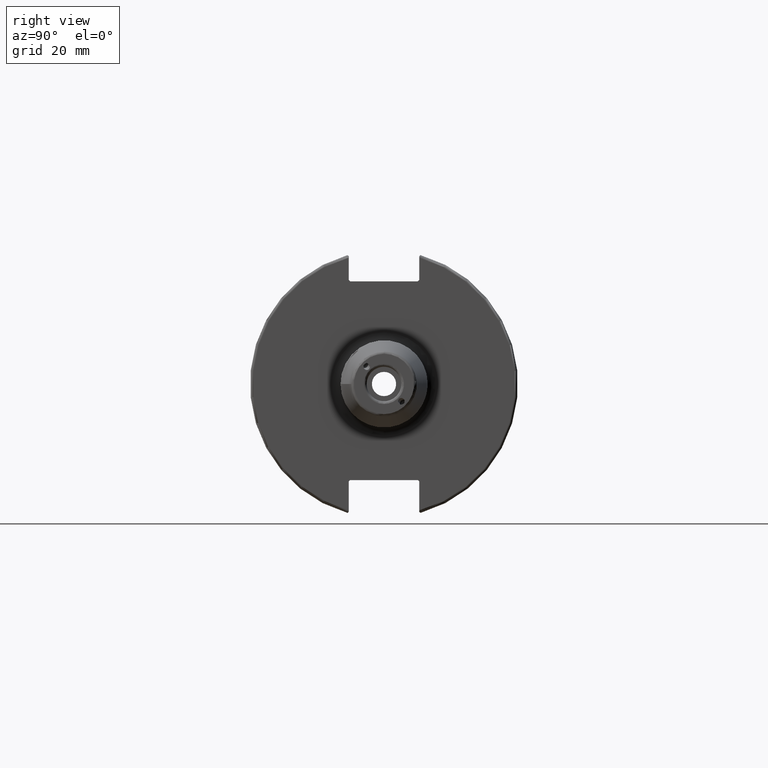
[diagram: clean part render]
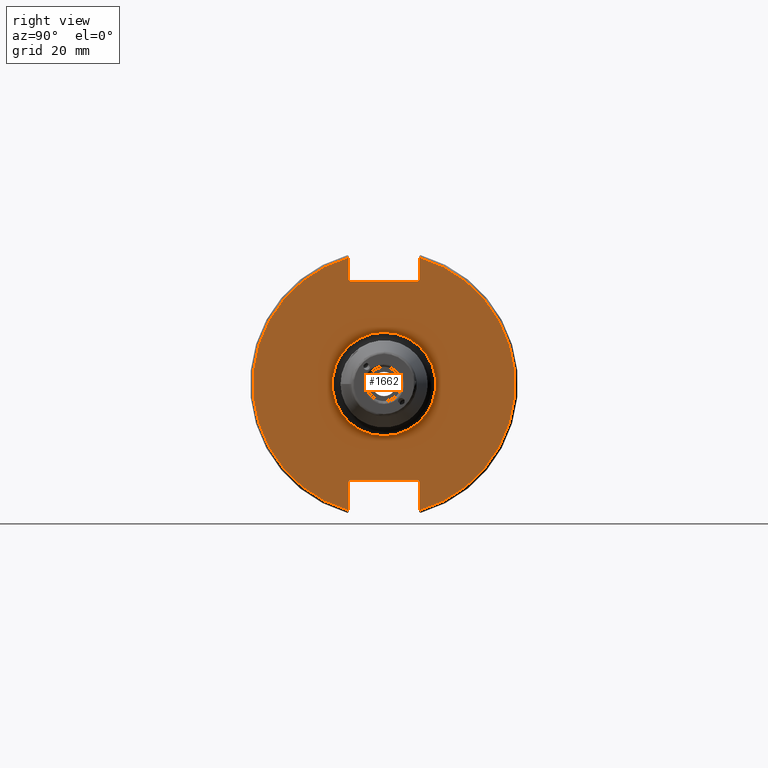
[diagram: same view with one face highlighted and labeled with its STEP entity id]
A machine part, right view. The second image highlights one B-rep face of the part: STEP entity #1662.
In plain terms, the highlighted planar face has unit normal (1, 0, 0).
Its self-contained STEP definition (entity closure, byte-faithful):
#35=FACE_BOUND('',#313,.T.);
#57=PLANE('',#1799);
#117=CIRCLE('',#1796,19.);
#119=CIRCLE('',#1800,48.2125);
#120=CIRCLE('',#1801,48.2125);
#213=FACE_OUTER_BOUND('',#312,.T.);
#312=EDGE_LOOP('',(#1187,#1188,#1189,#1190,#1191,#1192,#1193,#1194,#1195,
#1196,#1197,#1198));
#313=EDGE_LOOP('',(#1199));
#478=LINE('',#2714,#580);
#479=LINE('',#2716,#581);
#480=LINE('',#2718,#582);
#481=LINE('',#2720,#583);
#482=LINE('',#2722,#584);
#483=LINE('',#2726,#585);
#484=LINE('',#2728,#586);
#485=LINE('',#2730,#587);
#486=LINE('',#2732,#588);
#487=LINE('',#2733,#589);
#580=VECTOR('',#2029,10.);
#581=VECTOR('',#2030,10.);
#582=VECTOR('',#2031,10.);
#583=VECTOR('',#2032,10.);
#584=VECTOR('',#2033,10.);
#585=VECTOR('',#2036,10.);
#586=VECTOR('',#2037,10.);
#587=VECTOR('',#2038,10.);
#588=VECTOR('',#2039,10.);
#589=VECTOR('',#2040,10.);
#705=VERTEX_POINT('',#2703);
#706=VERTEX_POINT('',#2710);
#707=VERTEX_POINT('',#2711);
#708=VERTEX_POINT('',#2713);
#709=VERTEX_POINT('',#2715);
#710=VERTEX_POINT('',#2717);
#711=VERTEX_POINT('',#2719);
#712=VERTEX_POINT('',#2721);
#713=VERTEX_POINT('',#2723);
#714=VERTEX_POINT('',#2725);
#715=VERTEX_POINT('',#2727);
#716=VERTEX_POINT('',#2729);
#717=VERTEX_POINT('',#2731);
#889=EDGE_CURVE('',#705,#705,#117,.T.);
#892=EDGE_CURVE('',#706,#707,#119,.T.);
#893=EDGE_CURVE('',#706,#708,#478,.T.);
#894=EDGE_CURVE('',#709,#708,#479,.T.);
#895=EDGE_CURVE('',#709,#710,#480,.T.);
#896=EDGE_CURVE('',#711,#710,#481,.T.);
#897=EDGE_CURVE('',#711,#712,#482,.T.);
#898=EDGE_CURVE('',#713,#712,#120,.T.);
#899=EDGE_CURVE('',#713,#714,#483,.T.);
#900=EDGE_CURVE('',#715,#714,#484,.T.);
#901=EDGE_CURVE('',#715,#716,#485,.T.);
#902=EDGE_CURVE('',#717,#716,#486,.T.);
#903=EDGE_CURVE('',#717,#707,#487,.T.);
#1187=ORIENTED_EDGE('',*,*,#892,.F.);
#1188=ORIENTED_EDGE('',*,*,#893,.T.);
#1189=ORIENTED_EDGE('',*,*,#894,.F.);
#1190=ORIENTED_EDGE('',*,*,#895,.T.);
#1191=ORIENTED_EDGE('',*,*,#896,.F.);
#1192=ORIENTED_EDGE('',*,*,#897,.T.);
#1193=ORIENTED_EDGE('',*,*,#898,.F.);
#1194=ORIENTED_EDGE('',*,*,#899,.T.);
#1195=ORIENTED_EDGE('',*,*,#900,.F.);
#1196=ORIENTED_EDGE('',*,*,#901,.T.);
#1197=ORIENTED_EDGE('',*,*,#902,.F.);
#1198=ORIENTED_EDGE('',*,*,#903,.T.);
#1199=ORIENTED_EDGE('',*,*,#889,.F.);
#1662=ADVANCED_FACE('',(#213,#35),#57,.T.);
#1796=AXIS2_PLACEMENT_3D('',#2705,#2018,#2019);
#1799=AXIS2_PLACEMENT_3D('',#2709,#2025,#2026);
#1800=AXIS2_PLACEMENT_3D('',#2712,#2027,#2028);
#1801=AXIS2_PLACEMENT_3D('',#2724,#2034,#2035);
#2018=DIRECTION('center_axis',(1.,0.,0.));
#2019=DIRECTION('ref_axis',(0.,-1.,-1.22464679914735E-16));
#2025=DIRECTION('center_axis',(1.,0.,0.));
#2026=DIRECTION('ref_axis',(0.,0.,-1.));
#2027=DIRECTION('center_axis',(-1.,0.,0.));
#2028=DIRECTION('ref_axis',(0.,1.,-6.12323399573677E-17));
#2029=DIRECTION('',(0.,0.,-1.));
#2030=DIRECTION('',(0.,0.707106781186549,0.707106781186546));
#2031=DIRECTION('',(0.,-1.,0.));
#2032=DIRECTION('',(0.,0.707106781186549,-0.707106781186546));
#2033=DIRECTION('',(0.,0.,1.));
#2034=DIRECTION('center_axis',(-1.,0.,0.));
#2035=DIRECTION('ref_axis',(0.,-1.,1.60812264967664E-16));
#2036=DIRECTION('',(0.,0.,1.));
#2037=DIRECTION('',(0.,-0.707106781186549,-0.707106781186546));
#2038=DIRECTION('',(0.,1.,0.));
#2039=DIRECTION('',(0.,-0.707106781186549,0.707106781186546));
#2040=DIRECTION('',(0.,0.,-1.));
#2703=CARTESIAN_POINT('',(19.05,-2.32682891837997E-15,-19.));
#2705=CARTESIAN_POINT('Origin',(19.05,0.,0.));
#2709=CARTESIAN_POINT('Origin',(19.05,0.,0.));
#2710=CARTESIAN_POINT('',(19.05,12.95,46.4407434937254));
#2711=CARTESIAN_POINT('',(19.05,12.95,-46.4407434937254));
#2712=CARTESIAN_POINT('Origin',(19.05,0.,0.));
#2713=CARTESIAN_POINT('',(19.05,12.95,38.219));
#2714=CARTESIAN_POINT('',(19.05,12.95,18.8595));
#2715=CARTESIAN_POINT('',(19.05,12.45,37.719));
#2716=CARTESIAN_POINT('',(19.05,0.0327499999999836,25.30175));
#2717=CARTESIAN_POINT('',(19.05,-12.45,37.719));
#2718=CARTESIAN_POINT('',(19.05,0.,37.719));
#2719=CARTESIAN_POINT('',(19.05,-12.95,38.219));
#2720=CARTESIAN_POINT('',(19.05,-0.0327499999999817,25.30175));
#2721=CARTESIAN_POINT('',(19.05,-12.95,46.4407434937254));
#2722=CARTESIAN_POINT('',(19.05,-12.95,18.8595));
#2723=CARTESIAN_POINT('',(19.05,-12.95,-46.4407434937254));
#2724=CARTESIAN_POINT('Origin',(19.05,0.,0.));
#2725=CARTESIAN_POINT('',(19.05,-12.95,-35.806));
#2726=CARTESIAN_POINT('',(19.05,-12.95,-17.653));
#2727=CARTESIAN_POINT('',(19.05,-12.45,-35.306));
#2728=CARTESIAN_POINT('',(19.05,-0.635999999999989,-23.492));
#2729=CARTESIAN_POINT('',(19.05,12.45,-35.306));
#2730=CARTESIAN_POINT('',(19.05,-3.33066907387547E-15,-35.306));
#2731=CARTESIAN_POINT('',(19.05,12.95,-35.806));
#2732=CARTESIAN_POINT('',(19.05,0.635999999999982,-23.492));
#2733=CARTESIAN_POINT('',(19.05,12.95,-17.653));